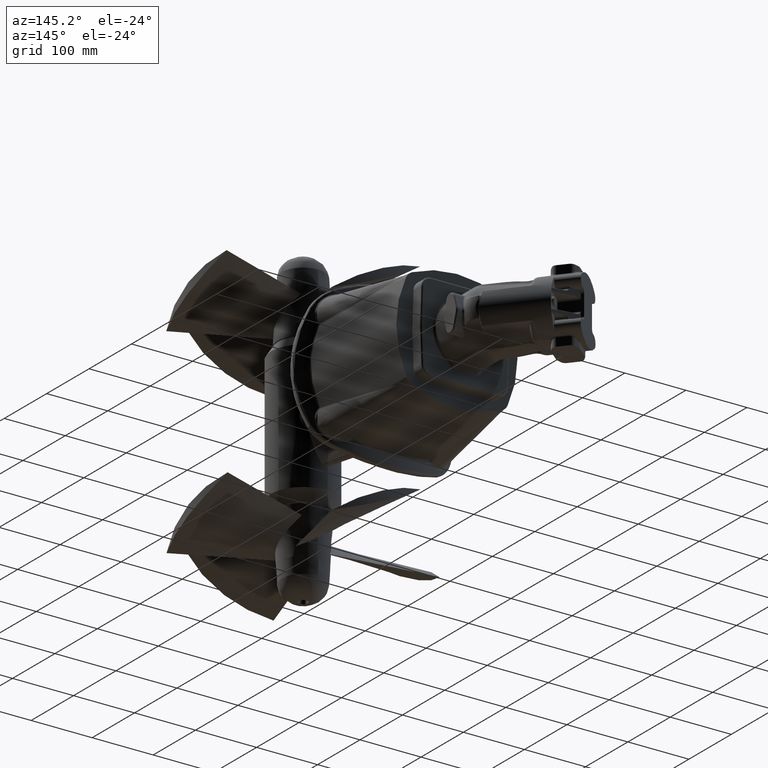
[diagram: clean part render]
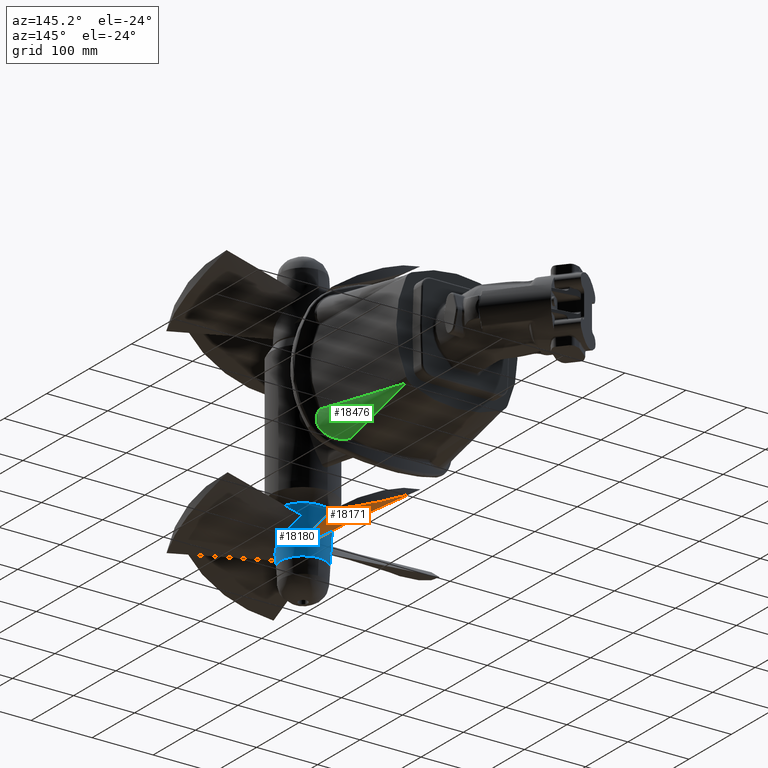
[diagram: same view with three faces highlighted in distinct colors, each labeled with its STEP entity id]
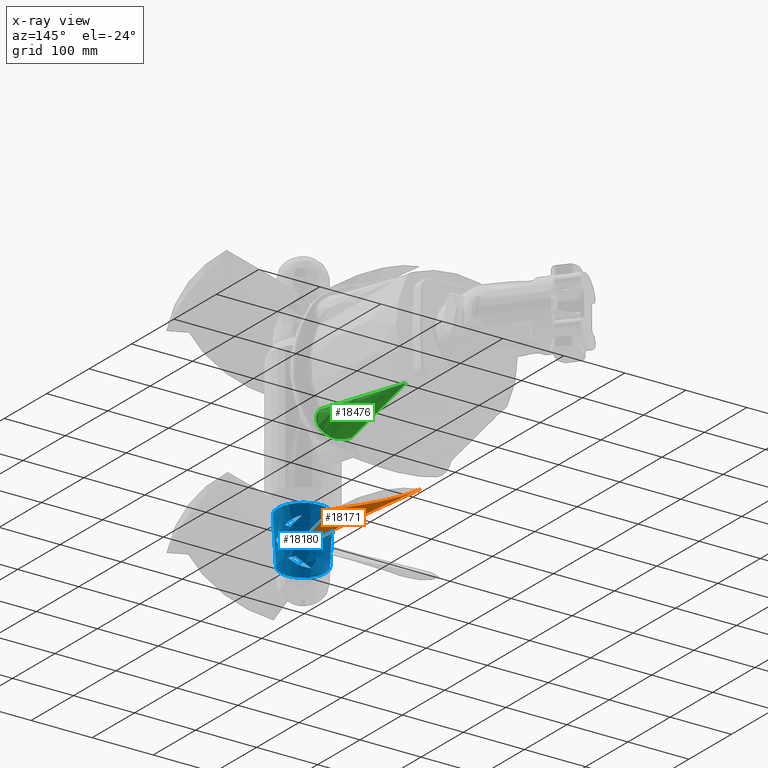
[diagram: x-ray of the same camera — body ghosted, the three highlighted faces saturated]
A machine part, auxiliary view with three faces highlighted in distinct colors.
The next image is the same camera in x-ray (body ghosted, the three faces saturated) — at least one of them is partly hidden behind the body in this view.
Their STEP definitions:

[orange] entity #18171 — the highlighted face is a freeform B-spline surface patch.
#1879=B_SPLINE_SURFACE_WITH_KNOTS('',3,3,((#28056,#28057,#28058,#28059),
(#28060,#28061,#28062,#28063),(#28064,#28065,#28066,#28067),(#28068,#28069,
#28070,#28071),(#28072,#28073,#28074,#28075)),.UNSPECIFIED.,.F.,.F.,.F.,
(4,1,4),(4,4),(0.,0.571428571428571,1.),(0.21885541195284,0.944592000267785),
 .UNSPECIFIED.);
#2079=B_SPLINE_CURVE_WITH_KNOTS('',3,(#27964,#27965,#27966,#27967,#27968,
#27969,#27970,#27971),.UNSPECIFIED.,.F.,.F.,(4,2,2,4),(-16.3029228168203,
-10.6747339701529,-6.94793082397458,0.),.UNSPECIFIED.);
#2086=B_SPLINE_CURVE_WITH_KNOTS('',3,(#28077,#28078,#28079,#28080),
 .UNSPECIFIED.,.F.,.F.,(4,4),(0.21885541195284,0.823709025792352),
 .UNSPECIFIED.);
#2087=B_SPLINE_CURVE_WITH_KNOTS('',3,(#28082,#28083,#28084,#28085,#28086,
#28087,#28088,#28089,#28090,#28091,#28092,#28093),.UNSPECIFIED.,.F.,.F.,
(4,2,2,2,2,4),(0.,2.77083612209637,5.22106907747769,7.26873717908181,8.29048922928706,
9.32154425047198),.UNSPECIFIED.);
#2088=B_SPLINE_CURVE_WITH_KNOTS('',3,(#28094,#28095,#28096,#28097),
 .UNSPECIFIED.,.F.,.F.,(4,4),(0.220585843450594,0.81592196059834),
 .UNSPECIFIED.);
#3590=FACE_OUTER_BOUND('',#4966,.T.);
#4966=EDGE_LOOP('',(#11931,#11932,#11933,#11934));
#7423=VERTEX_POINT('',#27954);
#7424=VERTEX_POINT('',#27955);
#7429=VERTEX_POINT('',#28076);
#7430=VERTEX_POINT('',#28081);
#9105=EDGE_CURVE('',#7424,#7423,#2079,.T.);
#9112=EDGE_CURVE('',#7429,#7423,#2086,.T.);
#9113=EDGE_CURVE('',#7430,#7429,#2087,.T.);
#9114=EDGE_CURVE('',#7430,#7424,#2088,.T.);
#11931=ORIENTED_EDGE('',*,*,#9105,.T.);
#11932=ORIENTED_EDGE('',*,*,#9112,.F.);
#11933=ORIENTED_EDGE('',*,*,#9113,.F.);
#11934=ORIENTED_EDGE('',*,*,#9114,.T.);
#18171=ADVANCED_FACE('',(#3590),#1879,.T.);
#27954=CARTESIAN_POINT('',(76.1292470293395,76.5758419291111,-196.970445601101));
#27955=CARTESIAN_POINT('',(-68.0733470885487,76.6849531501192,-130.649670792063));
#27964=CARTESIAN_POINT('Ctrl Pts',(-68.0733470885486,76.6849531501192,-130.649670792063));
#27965=CARTESIAN_POINT('Ctrl Pts',(-53.7038873281591,82.6394441303293,-141.187276694347));
#27966=CARTESIAN_POINT('Ctrl Pts',(-37.9979274934804,87.0410894540219,-150.648323340295));
#27967=CARTESIAN_POINT('Ctrl Pts',(-10.4372279926547,90.7861117308682,-164.898470899443));
#27968=CARTESIAN_POINT('Ctrl Pts',(0.864354058143688,91.3316232824523,-170.14789184897));
#27969=CARTESIAN_POINT('Ctrl Pts',(33.7000717688114,89.8575094161329,-183.96529299758));
#27970=CARTESIAN_POINT('Ctrl Pts',(55.375384963993,85.2127575903666,-191.397671022153));
#27971=CARTESIAN_POINT('Ctrl Pts',(76.1292470293395,76.5758419291111,-196.970445601101));
#28056=CARTESIAN_POINT('Ctrl Pts',(33.414500150023,-73.8692710593777,-185.76858755918));
#28057=CARTESIAN_POINT('Ctrl Pts',(46.7475198597115,-26.8579240119486,-189.265008354197));
#28058=CARTESIAN_POINT('Ctrl Pts',(75.9905651594589,75.972449675946,-196.934384351477));
#28059=CARTESIAN_POINT('Ctrl Pts',(80.0740647943636,90.5326102344932,-198.004798180256));
#28060=CARTESIAN_POINT('Ctrl Pts',(19.7205610171703,-73.7342954669247,-180.431725979303));
#28061=CARTESIAN_POINT('Ctrl Pts',(28.1404324290156,-26.6745215135573,-183.132008710919));
#28062=CARTESIAN_POINT('Ctrl Pts',(46.6041975624514,76.2620991579517,-189.057562863259));
#28063=CARTESIAN_POINT('Ctrl Pts',(49.1835584826031,90.8370854004884,-189.884242529978));
#28064=CARTESIAN_POINT('Ctrl Pts',(-2.80440628269716,-73.5122760189931,
-167.567323793303));
#28065=CARTESIAN_POINT('Ctrl Pts',(-3.01020837936715,-26.3674823075545,
-168.419718057699));
#28066=CARTESIAN_POINT('Ctrl Pts',(-3.46322620635155,76.7555934053141,-170.288344824471));
#28067=CARTESIAN_POINT('Ctrl Pts',(-3.52457724489903,91.3566080723723,-170.549301574723));
#28068=CARTESIAN_POINT('Ctrl Pts',(-21.0938565059041,-73.3320043414598,
-149.610086122014));
#28069=CARTESIAN_POINT('Ctrl Pts',(-29.9902189082796,-26.1015513091616,
-147.680420755524));
#28070=CARTESIAN_POINT('Ctrl Pts',(-49.5077001886247,77.2094350716636,-143.447502115259));
#28071=CARTESIAN_POINT('Ctrl Pts',(-52.2296279930812,91.8366739625747,-142.856743561211));
#28072=CARTESIAN_POINT('Ctrl Pts',(-27.9691125346809,-73.2642377370703,
-141.189446735474));
#28073=CARTESIAN_POINT('Ctrl Pts',(-40.5958816767434,-25.9970156016751,
-137.870871521174));
#28074=CARTESIAN_POINT('Ctrl Pts',(-68.2954623326119,77.3946184072729,-130.591598634457));
#28075=CARTESIAN_POINT('Ctrl Pts',(-72.1594377323755,92.0331139971725,-129.575631447014));
#28076=CARTESIAN_POINT('',(33.414500150023,-73.8692710593777,-185.76858755918));
#28077=CARTESIAN_POINT('Ctrl Pts',(33.414500150023,-73.8692710593777,-185.76858755918));
#28078=CARTESIAN_POINT('Ctrl Pts',(44.5266933130041,-34.6884117628623,-188.682623846478));
#28079=CARTESIAN_POINT('Ctrl Pts',(66.6901872831422,43.2650347098763,-194.495246495813));
#28080=CARTESIAN_POINT('Ctrl Pts',(76.1292470293394,76.5758419291111,-196.970445601101));
#28081=CARTESIAN_POINT('',(-28.0596901173798,-72.9251734573516,-141.165641092337));
#28082=CARTESIAN_POINT('Ctrl Pts',(-28.0596901173798,-72.9251734573516,
-141.165641092337));
#28083=CARTESIAN_POINT('Ctrl Pts',(-23.8170891729779,-67.8984301800118,
-147.649321329876));
#28084=CARTESIAN_POINT('Ctrl Pts',(-18.2961407311399,-63.8206856003583,
-153.432004829737));
#28085=CARTESIAN_POINT('Ctrl Pts',(-6.22665168187674,-59.1037409344663,
-163.576407564262));
#28086=CARTESIAN_POINT('Ctrl Pts',(-0.142261499347933,-58.2223324945973,
-167.783373023879));
#28087=CARTESIAN_POINT('Ctrl Pts',(10.927781229321,-59.1824625777242,-174.595853890139));
#28088=CARTESIAN_POINT('Ctrl Pts',(16.0074423778195,-60.6060868317196,-177.388665884163));
#28089=CARTESIAN_POINT('Ctrl Pts',(23.1550835329917,-64.3975928717222,-181.020053412996));
#28090=CARTESIAN_POINT('Ctrl Pts',(25.4339925793607,-65.9242602268786,-182.1253943174));
#28091=CARTESIAN_POINT('Ctrl Pts',(29.7036932688532,-69.5193822738292,-184.124658135507));
#28092=CARTESIAN_POINT('Ctrl Pts',(31.6734913314699,-71.5775509016343,-185.008062392416));
#28093=CARTESIAN_POINT('Ctrl Pts',(33.414500150023,-73.8692710593777,-185.76858755918));
#28094=CARTESIAN_POINT('Ctrl Pts',(-28.0596901173798,-72.9251734573516,
-141.165641092337));
#28095=CARTESIAN_POINT('Ctrl Pts',(-38.4764612641186,-33.9320558257487,
-138.427901824035));
#28096=CARTESIAN_POINT('Ctrl Pts',(-58.9736696495214,42.5961036877264,-133.04131603685));
#28097=CARTESIAN_POINT('Ctrl Pts',(-68.0733470885487,76.6849531501192,-130.649670792063));

[blue] entity #18180 — the highlighted conical surface has half-angle 3.219 deg.
#1757=CONICAL_SURFACE('',#19565,38.75,3.21949489685284);
#2081=B_SPLINE_CURVE_WITH_KNOTS('',3,(#27998,#27999,#28000,#28001,#28002,
#28003,#28004,#28005,#28006,#28007,#28008,#28009),.UNSPECIFIED.,.F.,.F.,
(4,2,2,2,2,4),(0.,2.53090143420264,4.73173549113663,6.61963387917274,7.59825769150815,
8.58581831324345),.UNSPECIFIED.);
#2084=B_SPLINE_CURVE_WITH_KNOTS('',3,(#28040,#28041,#28042,#28043,#28044,
#28045,#28046,#28047,#28048,#28049,#28050,#28051),.UNSPECIFIED.,.F.,.F.,
(4,2,2,2,2,4),(0.,2.77083612209621,5.2210690774772,7.26873717908105,8.29048922928614,
9.32154425047092),.UNSPECIFIED.);
#2087=B_SPLINE_CURVE_WITH_KNOTS('',3,(#28082,#28083,#28084,#28085,#28086,
#28087,#28088,#28089,#28090,#28091,#28092,#28093),.UNSPECIFIED.,.F.,.F.,
(4,2,2,2,2,4),(0.,2.77083612209637,5.22106907747769,7.26873717908181,8.29048922928706,
9.32154425047198),.UNSPECIFIED.);
#2089=B_SPLINE_CURVE_WITH_KNOTS('',3,(#28118,#28119,#28120,#28121,#28122,
#28123,#28124,#28125,#28126,#28127,#28128,#28129),.UNSPECIFIED.,.F.,.F.,
(4,2,2,2,2,4),(0.,2.7708361220963,5.2210690774772,7.26873717908074,8.29048922928575,
9.32154425047041),.UNSPECIFIED.);
#2090=B_SPLINE_CURVE_WITH_KNOTS('',3,(#28150,#28151,#28152,#28153,#28154,
#28155,#28156,#28157,#28158,#28159,#28160,#28161),.UNSPECIFIED.,.F.,.F.,
(4,2,2,2,2,4),(0.,2.53090143420265,4.73173549113668,6.61963387917285,7.59825769150825,
8.58581831324353),.UNSPECIFIED.);
#2091=B_SPLINE_CURVE_WITH_KNOTS('',3,(#28182,#28183,#28184,#28185,#28186,
#28187,#28188,#28189,#28190,#28191,#28192,#28193),.UNSPECIFIED.,.F.,.F.,
(4,2,2,2,2,4),(0.,2.53090143420266,4.73173549113668,6.61963387917283,7.59825769150818,
8.58581831324349),.UNSPECIFIED.);
#2095=B_SPLINE_CURVE_WITH_KNOTS('',3,(#28239,#28240,#28241,#28242,#28243,
#28244,#28245,#28246,#28247,#28248,#28249,#28250),.UNSPECIFIED.,.F.,.F.,
(4,2,2,2,2,4),(0.,2.77083612209629,5.22106907747768,7.26873717908204,8.29048922928739,
9.32154425047242),.UNSPECIFIED.);
#2097=B_SPLINE_CURVE_WITH_KNOTS('',3,(#28275,#28276,#28277,#28278,#28279,
#28280,#28281,#28282,#28283,#28284,#28285,#28286),.UNSPECIFIED.,.F.,.F.,
(4,2,2,2,2,4),(0.,2.53090143420265,4.73173549113665,6.61963387917278,7.59825769150814,
8.58581831324338),.UNSPECIFIED.);
#2931=FACE_BOUND('',#4978,.T.);
#2932=FACE_BOUND('',#4979,.T.);
#2933=FACE_BOUND('',#4980,.T.);
#2934=FACE_BOUND('',#4981,.T.);
#2935=FACE_BOUND('',#4982,.T.);
#3599=FACE_OUTER_BOUND('',#4977,.T.);
#4977=EDGE_LOOP('',(#11961));
#4978=EDGE_LOOP('',(#11962,#11963));
#4979=EDGE_LOOP('',(#11964,#11965));
#4980=EDGE_LOOP('',(#11966,#11967));
#4981=EDGE_LOOP('',(#11968,#11969));
#4982=EDGE_LOOP('',(#11970));
#6311=CIRCLE('',#19556,41.);
#6313=CIRCLE('',#19564,36.719375);
#7418=VERTEX_POINT('',#27913);
#7425=VERTEX_POINT('',#27992);
#7426=VERTEX_POINT('',#27997);
#7427=VERTEX_POINT('',#28034);
#7428=VERTEX_POINT('',#28039);
#7429=VERTEX_POINT('',#28076);
#7430=VERTEX_POINT('',#28081);
#7433=VERTEX_POINT('',#28233);
#7434=VERTEX_POINT('',#28238);
#7436=VERTEX_POINT('',#28291);
#9099=EDGE_CURVE('',#7418,#7418,#6311,.T.);
#9107=EDGE_CURVE('',#7426,#7425,#2081,.T.);
#9110=EDGE_CURVE('',#7428,#7427,#2084,.T.);
#9113=EDGE_CURVE('',#7430,#7429,#2087,.T.);
#9115=EDGE_CURVE('',#7425,#7426,#2089,.T.);
#9116=EDGE_CURVE('',#7427,#7428,#2090,.T.);
#9117=EDGE_CURVE('',#7429,#7430,#2091,.T.);
#9121=EDGE_CURVE('',#7434,#7433,#2095,.T.);
#9123=EDGE_CURVE('',#7433,#7434,#2097,.T.);
#9125=EDGE_CURVE('',#7436,#7436,#6313,.T.);
#11961=ORIENTED_EDGE('',*,*,#9125,.T.);
#11962=ORIENTED_EDGE('',*,*,#9115,.T.);
#11963=ORIENTED_EDGE('',*,*,#9107,.T.);
#11964=ORIENTED_EDGE('',*,*,#9110,.T.);
#11965=ORIENTED_EDGE('',*,*,#9116,.T.);
#11966=ORIENTED_EDGE('',*,*,#9113,.T.);
#11967=ORIENTED_EDGE('',*,*,#9117,.T.);
#11968=ORIENTED_EDGE('',*,*,#9121,.T.);
#11969=ORIENTED_EDGE('',*,*,#9123,.T.);
#11970=ORIENTED_EDGE('',*,*,#9099,.T.);
#18180=ADVANCED_FACE('',(#3599,#2931,#2932,#2933,#2934,#2935),#1757,.T.);
#19556=AXIS2_PLACEMENT_3D('',#27914,#21803,#21804);
#19564=AXIS2_PLACEMENT_3D('',#28292,#21819,#21820);
#19565=AXIS2_PLACEMENT_3D('',#28293,#21821,#21822);
#21803=DIRECTION('center_axis',(2.21872040103E-17,3.49599865864019E-16,
-1.));
#21804=DIRECTION('ref_axis',(-0.99995142732075,0.00985611481236078,3.36530937978035E-16));
#21819=DIRECTION('center_axis',(-2.21872040103E-17,-3.49599865864019E-16,
1.));
#21820=DIRECTION('ref_axis',(-0.99995142732075,0.00985611481236078,3.36530937978035E-16));
#21821=DIRECTION('center_axis',(-2.21872040103E-17,-3.49599865864019E-16,
1.));
#21822=DIRECTION('ref_axis',(-0.99995142732075,0.00985611481236078,3.36530937978035E-16));
#27913=CARTESIAN_POINT('',(-37.1014317391757,-96.589759065207,-123.500000032251));
#27914=CARTESIAN_POINT('Origin',(3.89657678097512,-96.9938597725138,-123.500000032251));
#27992=CARTESIAN_POINT('',(35.8528436793301,-121.062546087676,-141.165641092337));
#27997=CARTESIAN_POINT('',(-25.6213465880728,-120.11844848565,-185.76858755918));
#27998=CARTESIAN_POINT('Ctrl Pts',(-25.6213465880728,-120.11844848565,-185.76858755918));
#27999=CARTESIAN_POINT('Ctrl Pts',(-22.0731663846585,-125.17192993715,-180.020149228875));
#28000=CARTESIAN_POINT('Ctrl Pts',(-17.1849338346272,-129.439961468741,
-174.558454322886));
#28001=CARTESIAN_POINT('Ctrl Pts',(-6.07580280044512,-134.798957022611,
-164.81698132484));
#28002=CARTESIAN_POINT('Ctrl Pts',(-0.212569804977296,-136.177804805469,
-160.573188701412));
#28003=CARTESIAN_POINT('Ctrl Pts',(11.2329277476845,-135.983514078818,-153.355073249805));
#28004=CARTESIAN_POINT('Ctrl Pts',(16.6322968325434,-134.799114259521,-150.35376415982));
#28005=CARTESIAN_POINT('Ctrl Pts',(24.4030070270498,-131.127734467473,-146.400239349438));
#28006=CARTESIAN_POINT('Ctrl Pts',(26.9505538048532,-129.55527681533,-145.171956724884));
#28007=CARTESIAN_POINT('Ctrl Pts',(31.7232063185453,-125.759939035404,-142.96151942481));
#28008=CARTESIAN_POINT('Ctrl Pts',(33.9209364146098,-123.550217079416,-141.992875718844));
#28009=CARTESIAN_POINT('Ctrl Pts',(35.8528436793301,-121.062546087676,-141.165641092337));
#28034=CARTESIAN_POINT('',(27.0211654941112,-126.511783141562,-185.76858755918));
#28039=CARTESIAN_POINT('',(27.9652630961373,-65.0375928741588,-141.165641092337));
#28040=CARTESIAN_POINT('Ctrl Pts',(27.9652630961373,-65.0375928741588,-141.165641092337));
#28041=CARTESIAN_POINT('Ctrl Pts',(32.9920063734768,-69.2801938185605,-147.649321329876));
#28042=CARTESIAN_POINT('Ctrl Pts',(37.0697509531305,-74.8011422603984,-153.432004829736));
#28043=CARTESIAN_POINT('Ctrl Pts',(41.7866956190226,-86.8706313096618,-163.576407564262));
#28044=CARTESIAN_POINT('Ctrl Pts',(42.6681040588916,-92.9550214921906,-167.783373023879));
#28045=CARTESIAN_POINT('Ctrl Pts',(41.7079739757647,-104.02506422086,-174.595853890139));
#28046=CARTESIAN_POINT('Ctrl Pts',(40.2843497217693,-109.104725369358,-177.388665884163));
#28047=CARTESIAN_POINT('Ctrl Pts',(36.4928436817667,-116.25236652453,-181.020053412996));
#28048=CARTESIAN_POINT('Ctrl Pts',(34.9661763266103,-118.531275570899,-182.1253943174));
#28049=CARTESIAN_POINT('Ctrl Pts',(31.3710542796596,-122.800976260392,-184.124658135508));
#28050=CARTESIAN_POINT('Ctrl Pts',(29.3128856518545,-124.770774323009,-185.008062392416));
#28051=CARTESIAN_POINT('Ctrl Pts',(27.0211654941112,-126.511783141562,-185.76858755918));
#28076=CARTESIAN_POINT('',(33.414500150023,-73.8692710593777,-185.76858755918));
#28081=CARTESIAN_POINT('',(-28.0596901173798,-72.9251734573516,-141.165641092337));
#28082=CARTESIAN_POINT('Ctrl Pts',(-28.0596901173798,-72.9251734573516,
-141.165641092337));
#28083=CARTESIAN_POINT('Ctrl Pts',(-23.8170891729779,-67.8984301800118,
-147.649321329876));
#28084=CARTESIAN_POINT('Ctrl Pts',(-18.2961407311399,-63.8206856003583,
-153.432004829737));
#28085=CARTESIAN_POINT('Ctrl Pts',(-6.22665168187674,-59.1037409344663,
-163.576407564262));
#28086=CARTESIAN_POINT('Ctrl Pts',(-0.142261499347933,-58.2223324945973,
-167.783373023879));
#28087=CARTESIAN_POINT('Ctrl Pts',(10.927781229321,-59.1824625777242,-174.595853890139));
#28088=CARTESIAN_POINT('Ctrl Pts',(16.0074423778195,-60.6060868317196,-177.388665884163));
#28089=CARTESIAN_POINT('Ctrl Pts',(23.1550835329917,-64.3975928717222,-181.020053412996));
#28090=CARTESIAN_POINT('Ctrl Pts',(25.4339925793607,-65.9242602268786,-182.1253943174));
#28091=CARTESIAN_POINT('Ctrl Pts',(29.7036932688532,-69.5193822738292,-184.124658135507));
#28092=CARTESIAN_POINT('Ctrl Pts',(31.6734913314699,-71.5775509016343,-185.008062392416));
#28093=CARTESIAN_POINT('Ctrl Pts',(33.414500150023,-73.8692710593777,-185.76858755918));
#28118=CARTESIAN_POINT('Ctrl Pts',(35.8528436793301,-121.062546087676,-141.165641092337));
#28119=CARTESIAN_POINT('Ctrl Pts',(31.6102427349282,-126.089289365016,-147.649321329876));
#28120=CARTESIAN_POINT('Ctrl Pts',(26.0892942930903,-130.167033944669,-153.432004829737));
#28121=CARTESIAN_POINT('Ctrl Pts',(14.0198052438277,-134.883978610561,-163.576407564262));
#28122=CARTESIAN_POINT('Ctrl Pts',(7.93541506129893,-135.76538705043,-167.783373023878));
#28123=CARTESIAN_POINT('Ctrl Pts',(-3.13462766737082,-134.805256967303,
-174.595853890139));
#28124=CARTESIAN_POINT('Ctrl Pts',(-8.21428881586922,-133.381632713308,
-177.388665884163));
#28125=CARTESIAN_POINT('Ctrl Pts',(-15.3619299710416,-129.590126673305,
-181.020053412996));
#28126=CARTESIAN_POINT('Ctrl Pts',(-17.6408390174105,-128.063459318149,
-182.1253943174));
#28127=CARTESIAN_POINT('Ctrl Pts',(-21.9105397069029,-124.468337271198,
-184.124658135507));
#28128=CARTESIAN_POINT('Ctrl Pts',(-23.8803377695196,-122.410168643393,
-185.008062392416));
#28129=CARTESIAN_POINT('Ctrl Pts',(-25.6213465880727,-120.11844848565,-185.76858755918));
#28150=CARTESIAN_POINT('Ctrl Pts',(27.0211654941112,-126.511783141562,-185.76858755918));
#28151=CARTESIAN_POINT('Ctrl Pts',(32.0746469456109,-122.963602938147,-180.020149228875));
#28152=CARTESIAN_POINT('Ctrl Pts',(36.3426784772024,-118.075370388116,-174.558454322886));
#28153=CARTESIAN_POINT('Ctrl Pts',(41.7016740310721,-106.966239353934,-164.81698132484));
#28154=CARTESIAN_POINT('Ctrl Pts',(43.0805218139303,-101.103006358466,-160.573188701412));
#28155=CARTESIAN_POINT('Ctrl Pts',(42.8862310872792,-89.6575088058043,-153.355073249805));
#28156=CARTESIAN_POINT('Ctrl Pts',(41.701831267982,-84.2581397209454,-150.35376415982));
#28157=CARTESIAN_POINT('Ctrl Pts',(38.0304514759344,-76.4874295264391,-146.400239349438));
#28158=CARTESIAN_POINT('Ctrl Pts',(36.4579938237917,-73.9398827486357,-145.171956724884));
#28159=CARTESIAN_POINT('Ctrl Pts',(32.6626560438651,-69.1672302349436,-142.96151942481));
#28160=CARTESIAN_POINT('Ctrl Pts',(30.4529340878769,-66.9695001388791,-141.992875718844));
#28161=CARTESIAN_POINT('Ctrl Pts',(27.9652630961373,-65.0375928741588,-141.165641092337));
#28182=CARTESIAN_POINT('Ctrl Pts',(33.414500150023,-73.8692710593777,-185.76858755918));
#28183=CARTESIAN_POINT('Ctrl Pts',(29.8663199466088,-68.815789607878,-180.020149228875));
#28184=CARTESIAN_POINT('Ctrl Pts',(24.9780873965774,-64.5477580762865,-174.558454322886));
#28185=CARTESIAN_POINT('Ctrl Pts',(13.8689563623953,-59.1887625224168,-164.81698132484));
#28186=CARTESIAN_POINT('Ctrl Pts',(8.00572336692749,-57.8099147395586,-160.573188701412));
#28187=CARTESIAN_POINT('Ctrl Pts',(-3.43977418573433,-58.0042054662097,
-153.355073249805));
#28188=CARTESIAN_POINT('Ctrl Pts',(-8.83914327059328,-59.1886052855069,
-150.35376415982));
#28189=CARTESIAN_POINT('Ctrl Pts',(-16.6098534650995,-62.8599850775545,
-146.400239349438));
#28190=CARTESIAN_POINT('Ctrl Pts',(-19.157400242903,-64.4324427296972,-145.171956724884));
#28191=CARTESIAN_POINT('Ctrl Pts',(-23.9300527565953,-68.227780509624,-142.96151942481));
#28192=CARTESIAN_POINT('Ctrl Pts',(-26.1277828526597,-70.4375024656121,
-141.992875718844));
#28193=CARTESIAN_POINT('Ctrl Pts',(-28.0596901173798,-72.9251734573516,
-141.165641092337));
#28233=CARTESIAN_POINT('',(-19.2280119321609,-67.4759364034659,-185.76858755918));
#28238=CARTESIAN_POINT('',(-20.1721095341871,-128.950126670869,-141.165641092337));
#28239=CARTESIAN_POINT('Ctrl Pts',(-20.1721095341871,-128.950126670869,
-141.165641092337));
#28240=CARTESIAN_POINT('Ctrl Pts',(-25.1988528115267,-124.707525726467,
-147.649321329876));
#28241=CARTESIAN_POINT('Ctrl Pts',(-29.2765973911803,-119.186577284629,
-153.432004829737));
#28242=CARTESIAN_POINT('Ctrl Pts',(-33.9935420570725,-107.117088235365,
-163.576407564263));
#28243=CARTESIAN_POINT('Ctrl Pts',(-34.8749504969413,-101.032698052836,
-167.783373023879));
#28244=CARTESIAN_POINT('Ctrl Pts',(-33.9148204138145,-89.9626553241679,
-174.595853890139));
#28245=CARTESIAN_POINT('Ctrl Pts',(-32.491196159819,-84.8829941756694,-177.388665884163));
#28246=CARTESIAN_POINT('Ctrl Pts',(-28.6996901198164,-77.7353530204972,
-181.020053412996));
#28247=CARTESIAN_POINT('Ctrl Pts',(-27.1730227646601,-75.4564439741282,
-182.1253943174));
#28248=CARTESIAN_POINT('Ctrl Pts',(-23.5779007177094,-71.1867432846357,
-184.124658135507));
#28249=CARTESIAN_POINT('Ctrl Pts',(-21.5197320899043,-69.216945222019,-185.008062392416));
#28250=CARTESIAN_POINT('Ctrl Pts',(-19.228011932161,-67.4759364034659,-185.76858755918));
#28275=CARTESIAN_POINT('Ctrl Pts',(-19.2280119321609,-67.4759364034659,
-185.76858755918));
#28276=CARTESIAN_POINT('Ctrl Pts',(-24.2814933836606,-71.0241166068801,
-180.020149228874));
#28277=CARTESIAN_POINT('Ctrl Pts',(-28.5495249152521,-75.9123491569114,
-174.558454322886));
#28278=CARTESIAN_POINT('Ctrl Pts',(-33.9085204691218,-87.0214801910935,
-164.81698132484));
#28279=CARTESIAN_POINT('Ctrl Pts',(-35.28736825198,-92.8847131865614,-160.573188701412));
#28280=CARTESIAN_POINT('Ctrl Pts',(-35.0930775253289,-104.330210739223,
-153.355073249805));
#28281=CARTESIAN_POINT('Ctrl Pts',(-33.9086777060318,-109.729579824082,
-150.35376415982));
#28282=CARTESIAN_POINT('Ctrl Pts',(-30.2372979139842,-117.500290018588,
-146.400239349438));
#28283=CARTESIAN_POINT('Ctrl Pts',(-28.6648402618415,-120.047836796392,
-145.171956724884));
#28284=CARTESIAN_POINT('Ctrl Pts',(-24.8695024819148,-124.820489310084,
-142.96151942481));
#28285=CARTESIAN_POINT('Ctrl Pts',(-22.6597805259267,-127.018219406149,
-141.992875718844));
#28286=CARTESIAN_POINT('Ctrl Pts',(-20.1721095341871,-128.950126670869,
-141.165641092337));
#28291=CARTESIAN_POINT('',(40.614168222551,-97.3557701483519,-199.600000032251));
#28292=CARTESIAN_POINT('Origin',(3.89657678097512,-96.9938597725138,-199.600000032251));
#28293=CARTESIAN_POINT('Origin',(3.89657678097512,-96.9938597725138,-163.500000032251));

[green] entity #18476 — the highlighted conical surface has half-angle 9.5 deg.
#1837=CONICAL_SURFACE('',#20022,38.5,9.5);
#2206=B_SPLINE_CURVE_WITH_KNOTS('',3,(#31191,#31192,#31193,#31194,#31195,
#31196,#31197),.UNSPECIFIED.,.F.,.F.,(4,1,1,1,4),(0.,1.7769953128831,3.5539906257662,
5.3309859386493,12.4389671901817),.UNSPECIFIED.);
#2208=B_SPLINE_CURVE_WITH_KNOTS('',3,(#31335,#31336,#31337,#31338,#31339,
#31340,#31341,#31342,#31343,#31344,#31345,#31346,#31347,#31348,#31349,#31350,
#31351,#31352,#31353,#31354,#31355,#31356,#31357,#31358,#31359,#31360,#31361),
 .UNSPECIFIED.,.F.,.F.,(4,1,1,1,1,1,1,1,1,1,1,1,1,1,1,1,1,1,1,1,1,1,1,1,
4),(-5.54995967983544,-4.65800187414763,-4.55889545129342,-4.36068260558502,
-3.96425691416821,-3.43568932561247,-3.30354742847354,-3.2705119541888,
-3.23747647990407,-3.1714055313346,-3.03926363419567,-2.9731926856262,-2.94015721134147,
-2.90712173705673,-2.84105078848726,-2.7749798399178,-2.70890889134833,
-2.64283794277886,-2.51069604563993,-2.37855414850099,-2.18034130279259,
-1.98212845708419,-1.58570276566738,-0.792851382833767,-1.55875085445415E-13),
 .UNSPECIFIED.);
#2209=B_SPLINE_CURVE_WITH_KNOTS('',3,(#31394,#31395,#31396,#31397,#31398,
#31399,#31400,#31401),.UNSPECIFIED.,.F.,.F.,(4,1,1,1,1,4),(1.12096570956762,
7.24510980740494,11.334014276034,13.3784665103485,14.4006926275058,15.422918744663),
 .UNSPECIFIED.);
#2224=B_SPLINE_CURVE_WITH_KNOTS('',3,(#32454,#32455,#32456,#32457,#32458,
#32459,#32460,#32461,#32462,#32463,#32464,#32465,#32466,#32467,#32468,#32469,
#32470),.UNSPECIFIED.,.F.,.F.,(4,1,1,1,1,1,1,1,1,1,1,1,1,1,4),(-24.9567734981658,
-24.5023619798118,-24.3508914736938,-23.7450094492219,-22.5332454002779,
-22.3060396411009,-22.2303043880419,-21.9273633758059,-20.7155993268619,
-20.10971730239,-18.897953253446,-18.443541735092,-17.686189204502,-17.08030718003,
-16.4744251555581),.UNSPECIFIED.);
#3895=FACE_OUTER_BOUND('',#5385,.T.);
#5385=EDGE_LOOP('',(#13149,#13150,#13151,#13152));
#7824=VERTEX_POINT('',#31127);
#7825=VERTEX_POINT('',#31154);
#7826=VERTEX_POINT('',#31189);
#7827=VERTEX_POINT('',#31333);
#9647=EDGE_CURVE('',#7826,#7825,#2206,.T.);
#9650=EDGE_CURVE('',#7827,#7826,#2208,.T.);
#9651=EDGE_CURVE('',#7824,#7827,#2209,.T.);
#9677=EDGE_CURVE('',#7825,#7824,#2224,.T.);
#13149=ORIENTED_EDGE('',*,*,#9651,.F.);
#13150=ORIENTED_EDGE('',*,*,#9677,.F.);
#13151=ORIENTED_EDGE('',*,*,#9647,.F.);
#13152=ORIENTED_EDGE('',*,*,#9650,.F.);
#18476=ADVANCED_FACE('',(#3895),#1837,.T.);
#20022=AXIS2_PLACEMENT_3D('',#35349,#22859,#22860);
#22859=DIRECTION('center_axis',(-5.02815290480203E-16,-1.,-4.8305084843109E-16));
#22860=DIRECTION('ref_axis',(1.66533453693773E-16,-4.8305084843109E-16,
1.));
#31127=CARTESIAN_POINT('',(108.899543992373,92.7944502882228,-63.6632877181715));
#31154=CARTESIAN_POINT('',(69.5336364355275,111.151263022612,-102.548439080332));
#31189=CARTESIAN_POINT('',(81.5335786026523,233.498573173312,-84.7403708926954));
#31191=CARTESIAN_POINT('Ctrl Pts',(81.5335786026523,233.498573173312,-84.7403708926954));
#31192=CARTESIAN_POINT('Ctrl Pts',(81.0031760951396,227.727770829371,-85.7162811189681));
#31193=CARTESIAN_POINT('Ctrl Pts',(79.9700992744041,216.110841862178,-87.5710025428852));
#31194=CARTESIAN_POINT('Ctrl Pts',(78.3527901741118,198.648212105848,-90.2282504298009));
#31195=CARTESIAN_POINT('Ctrl Pts',(75.008583561986,163.676012254231,-95.3632450945011));
#31196=CARTESIAN_POINT('Ctrl Pts',(72.0187995856156,134.496232857939,-99.4028303564541));
#31197=CARTESIAN_POINT('Ctrl Pts',(69.5336364355276,111.151263022612,-102.548439080332));
#31333=CARTESIAN_POINT('',(88.6369476414204,233.49857317331,-77.6370018539276));
#31335=CARTESIAN_POINT('Ctrl Pts',(88.6369476414204,233.49857317331,-77.6370018539276));
#31336=CARTESIAN_POINT('Ctrl Pts',(88.1470922446933,236.395211199556,-77.9032359026628));
#31337=CARTESIAN_POINT('Ctrl Pts',(87.5864279330206,239.613260333713,-78.1632104887607));
#31338=CARTESIAN_POINT('Ctrl Pts',(86.893274888268,243.464269848308,-78.4285814232448));
#31339=CARTESIAN_POINT('Ctrl Pts',(86.4851466534844,245.709751455219,-78.5751621791394));
#31340=CARTESIAN_POINT('Ctrl Pts',(85.8122707222249,249.329883221478,-78.7875521217043));
#31341=CARTESIAN_POINT('Ctrl Pts',(85.1554861376421,252.733746404746,-78.9520648126418));
#31342=CARTESIAN_POINT('Ctrl Pts',(84.7062497446859,254.9212937743,-79.0560224520224));
#31343=CARTESIAN_POINT('Ctrl Pts',(84.5755394176599,255.54091064199,-79.0868657507375));
#31344=CARTESIAN_POINT('Ctrl Pts',(84.4877440868438,255.952605055037,-79.1077444384814));
#31345=CARTESIAN_POINT('Ctrl Pts',(84.3320423574463,256.667770758449,-79.1457487933906));
#31346=CARTESIAN_POINT('Ctrl Pts',(84.1482063727987,257.473981313725,-79.1935484862733));
#31347=CARTESIAN_POINT('Ctrl Pts',(83.9768401361208,258.152687164569,-79.2476106903138));
#31348=CARTESIAN_POINT('Ctrl Pts',(83.8755170835876,258.522940217703,-79.2842015284346));
#31349=CARTESIAN_POINT('Ctrl Pts',(83.7694947778418,258.877202800989,-79.3278390335978));
#31350=CARTESIAN_POINT('Ctrl Pts',(83.6312417749436,259.283731815091,-79.3936701219267));
#31351=CARTESIAN_POINT('Ctrl Pts',(83.4372380363003,259.568562431538,-79.536309880262));
#31352=CARTESIAN_POINT('Ctrl Pts',(83.291140984289,259.285158570159,-79.733511960918));
#31353=CARTESIAN_POINT('Ctrl Pts',(83.1852921612899,258.637276073648,-79.9548012522891));
#31354=CARTESIAN_POINT('Ctrl Pts',(83.1021698157169,257.677377510466,-80.2052745340145));
#31355=CARTESIAN_POINT('Ctrl Pts',(83.0182731167167,256.260464113175,-80.5282302311832));
#31356=CARTESIAN_POINT('Ctrl Pts',(82.9372987697658,254.612157332128,-80.875989964281));
#31357=CARTESIAN_POINT('Ctrl Pts',(82.8184047333018,252.090407910649,-81.3827972353048));
#31358=CARTESIAN_POINT('Ctrl Pts',(82.5952896398103,247.633156199122,-82.2391457988002));
#31359=CARTESIAN_POINT('Ctrl Pts',(82.1928883927548,241.222618057646,-83.4103548375771));
#31360=CARTESIAN_POINT('Ctrl Pts',(81.770231090417,236.073362529976,-84.3049438733824));
#31361=CARTESIAN_POINT('Ctrl Pts',(81.5335786026524,233.498573173312,-84.7403708926954));
#31394=CARTESIAN_POINT('Ctrl Pts',(108.899544005018,92.7944502914122,-63.6632877238467));
#31395=CARTESIAN_POINT('Ctrl Pts',(106.230170748624,112.909960195682,-65.84736044411));
#31396=CARTESIAN_POINT('Ctrl Pts',(101.673103598975,146.452811506798,-69.3759451709778));
#31397=CARTESIAN_POINT('Ctrl Pts',(95.9165134848567,186.685812447609,-73.3373767992206));
#31398=CARTESIAN_POINT('Ctrl Pts',(92.3867130923399,210.137269294284,-75.5234828049897));
#31399=CARTESIAN_POINT('Ctrl Pts',(90.2869331994323,223.512144007999,-76.7347049114748));
#31400=CARTESIAN_POINT('Ctrl Pts',(89.1983452512307,230.178888067693,-77.3318849569643));
#31401=CARTESIAN_POINT('Ctrl Pts',(88.6369476414204,233.49857317331,-77.6370018539275));
#32454=CARTESIAN_POINT('Ctrl Pts',(69.5336364355275,111.151263022612,-102.548439080332));
#32455=CARTESIAN_POINT('Ctrl Pts',(70.7065089376443,110.756089994847,-103.177082179775));
#32456=CARTESIAN_POINT('Ctrl Pts',(72.3078012894119,110.199532230619,-103.898506942946));
#32457=CARTESIAN_POINT('Ctrl Pts',(75.6240303581938,108.994446334393,-105.050278094519));
#32458=CARTESIAN_POINT('Ctrl Pts',(81.1880970848172,106.864395829527,-106.302002843743));
#32459=CARTESIAN_POINT('Ctrl Pts',(87.0201317584363,104.334195483785,-106.050976911496));
#32460=CARTESIAN_POINT('Ctrl Pts',(91.1666142137714,102.368810321176,-105.01215545644));
#32461=CARTESIAN_POINT('Ctrl Pts',(92.7954312961822,101.583314136892,-104.526617308346));
#32462=CARTESIAN_POINT('Ctrl Pts',(96.9819494812834,99.5220474179001,-103.037300074648));
#32463=CARTESIAN_POINT('Ctrl Pts',(102.163649951255,96.7393593779582,-99.8006900642087));
#32464=CARTESIAN_POINT('Ctrl Pts',(108.054181532628,93.3337468801776,-93.41297677333));
#32465=CARTESIAN_POINT('Ctrl Pts',(111.189375838926,91.3945493410118,-87.2841383785265));
#32466=CARTESIAN_POINT('Ctrl Pts',(112.63553758333,90.482076084563,-80.0213125343975));
#32467=CARTESIAN_POINT('Ctrl Pts',(112.634535648349,90.4826720991301,-74.3994636693416));
#32468=CARTESIAN_POINT('Ctrl Pts',(111.266525731943,91.3456699339597,-68.5206401311016));
#32469=CARTESIAN_POINT('Ctrl Pts',(109.781793034085,92.2609701603979,-65.2182776204026));
#32470=CARTESIAN_POINT('Ctrl Pts',(108.899543992373,92.7944502882228,-63.6632877181715));
#35349=CARTESIAN_POINT('Origin',(81.3965767809751,46.7061402274861,-77.5000000322507));